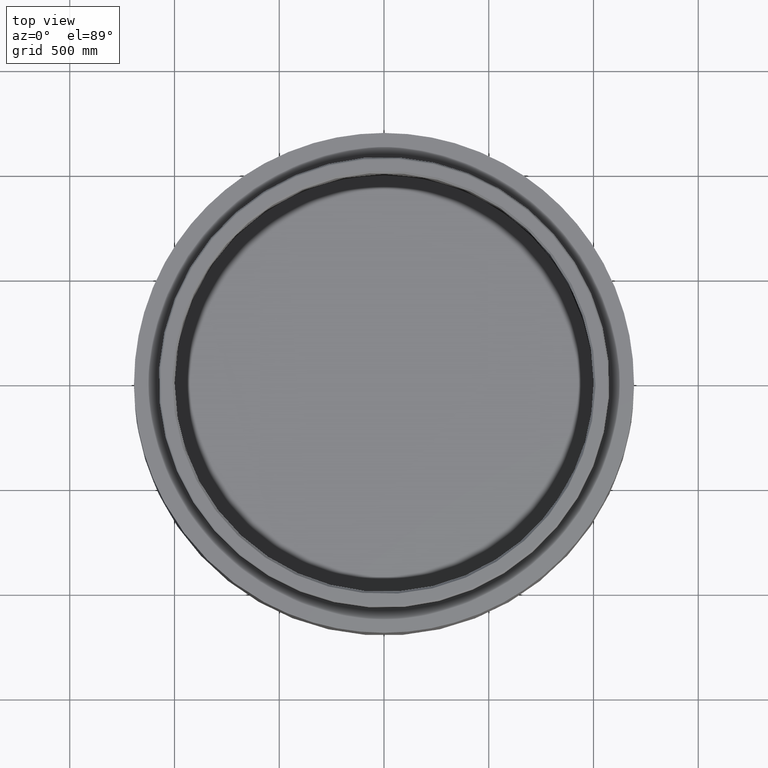
[diagram: clean part render]
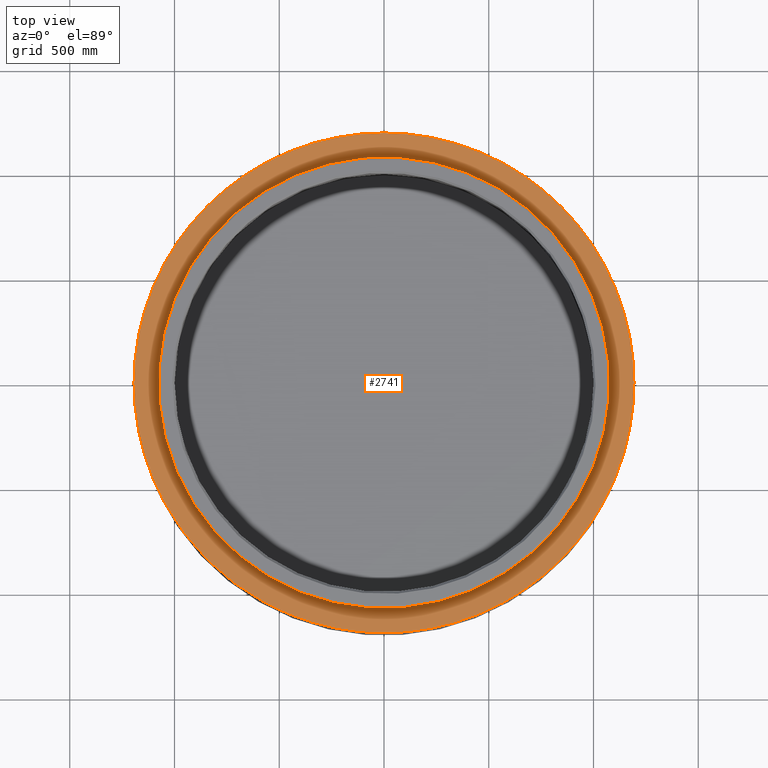
[diagram: same view with one face highlighted and labeled with its STEP entity id]
A machine part, top view. The second image highlights one B-rep face of the part: STEP entity #2741.
In plain terms, the highlighted planar face has unit normal (0, -0, 1).
Its self-contained STEP definition (entity closure, byte-faithful):
#33 = CARTESIAN_POINT ( 'NONE',  ( -341.4000642776308041, 1143.120031042307346, 557.0000000000000000 ) ) ;
#48 = CARTESIAN_POINT ( 'NONE',  ( 446.7788054181196458, 1106.182515374918466, 556.9999999999997726 ) ) ;
#149 = CARTESIAN_POINT ( 'NONE',  ( -417.4974777166241324, 1117.763629465329814, 556.9999999999998863 ) ) ;
#324 = CARTESIAN_POINT ( 'NONE',  ( 1110.468912292221603, -436.5241311987226709, 557.0000000000002274 ) ) ;
#459 = CARTESIAN_POINT ( 'NONE',  ( 476.1740398323344152, -1093.860552164960609, 557.0000000000000000 ) ) ;
#545 = ORIENTED_EDGE ( 'NONE', *, *, #8618, .T. ) ;
#576 = CIRCLE ( 'NONE', #13123, 1193.000000000000227 ) ;
#667 = CARTESIAN_POINT ( 'NONE',  ( 1085.582050390993118, -495.1878347200282633, 556.9999999999997726 ) ) ;
#819 = VERTEX_POINT ( 'NONE', #13542 ) ;
#959 = ORIENTED_EDGE ( 'NONE', *, *, #12391, .F. ) ;
#972 = ORIENTED_EDGE ( 'NONE', *, *, #20444, .F. ) ;
#999 = CARTESIAN_POINT ( 'NONE',  ( 1144.632210604118427, -336.2530333655441837, 557.0000000000000000 ) ) ;
#1161 = CARTESIAN_POINT ( 'NONE',  ( 572.9973566254999469, -910.7414722632267967, 557.0000000000000000 ) ) ;
#1260 = CARTESIAN_POINT ( 'NONE',  ( -1138.586671481308940, 356.8303361745944926, 557.0000000000000000 ) ) ;
#1290 = AXIS2_PLACEMENT_3D ( 'NONE', #4428, #17818, #19929 ) ;
#1305 = DIRECTION ( 'NONE',  ( -0.0000000000000000000, -0.0000000000000000000, -1.000000000000000000 ) ) ;
#1549 = DIRECTION ( 'NONE',  ( -0.0000000000000000000, -0.0000000000000000000, -1.000000000000000000 ) ) ;
#1576 = CARTESIAN_POINT ( 'NONE',  ( -1110.206155613008150, 437.1919630782510922, 557.0000000000001137 ) ) ;
#1628 = DIRECTION ( 'NONE',  ( 1.000000000000000000, 0.0000000000000000000, 0.0000000000000000000 ) ) ;
#1649 = CARTESIAN_POINT ( 'NONE',  ( 1144.632210606588615, 336.2530333571348820, 557.0000000000000000 ) ) ;
#1708 = VERTEX_POINT ( 'NONE', #9003 ) ;
#1713 = CARTESIAN_POINT ( 'NONE',  ( -1047.143998172631655, -571.6103979906561108, 557.0000000000000000 ) ) ;
#1739 = CARTESIAN_POINT ( 'NONE',  ( 571.6103979589651090, 1047.143998189931153, 557.0000000000000000 ) ) ;
#1895 = DIRECTION ( 'NONE',  ( -0.0000000000000000000, -0.0000000000000000000, -1.000000000000000000 ) ) ;
#1922 = EDGE_CURVE ( 'NONE', #18741, #17625, #3064, .T. ) ;
#1938 = CARTESIAN_POINT ( 'NONE',  ( 0.0000000000000000000, 0.0000000000000000000, 557.0000000000000000 ) ) ;
#1966 = B_SPLINE_CURVE_WITH_KNOTS ( 'NONE', 3,
 ( #1739, #8579, #10055, #22068, #6671, #13528, #15431, #48, #13755, #12063, #12523, #12634, #13984, #14322, #4100, #10956 ),
 .UNSPECIFIED., .F., .F.,
 ( 4, 2, 2, 2, 2, 2, 2, 4 ),
 ( 5.022828497566303341, 5.086460192354243404, 5.150091887142183467, 5.158045848990675530, 5.165999810839168482, 5.181907734536153498, 5.213723581930124418, 5.277355276718065369 ),
 .UNSPECIFIED. ) ;
#2100 = ORIENTED_EDGE ( 'NONE', *, *, #21162, .F. ) ;
#2145 = CARTESIAN_POINT ( 'NONE',  ( 356.5473028362452510, -1138.669825678807683, 557.0000000000001137 ) ) ;
#2221 = CIRCLE ( 'NONE', #10095, 1193.000000000000227 ) ;
#2235 = DIRECTION ( 'NONE',  ( -7.005467589146161716E-18, 3.518248062309025038E-17, -1.000000000000000000 ) ) ;
#2279 = VERTEX_POINT ( 'NONE', #8373 ) ;
#2403 = VERTEX_POINT ( 'NONE', #7947 ) ;
#2405 = CARTESIAN_POINT ( 'NONE',  ( 0.0000000000000000000, 0.0000000000000000000, 557.0000000000000000 ) ) ;
#2432 = ORIENTED_EDGE ( 'NONE', *, *, #10705, .F. ) ;
#2699 = CARTESIAN_POINT ( 'NONE',  ( -437.2605615748894934, -1110.179136669989020, 557.0000000000001137 ) ) ;
#2741 = ADVANCED_FACE ( 'NONE', ( #19844, #8239 ), #13096, .T. ) ;
#2787 = DIRECTION ( 'NONE',  ( -0.0000000000000000000, -0.0000000000000000000, -1.000000000000000000 ) ) ;
#3064 = B_SPLINE_CURVE_WITH_KNOTS ( 'NONE', 3,
 ( #1649, #13895, #8489, #13778, #8265, #8375, #8719, #15119, #20297 ),
 .UNSPECIFIED., .F., .F.,
 ( 4, 1, 2, 2, 4 ),
 ( 4.085705627250583838, 4.149595913780554923, 4.213486200310525120, 4.277376486840496206, 4.341266773370467291 ),
 .UNSPECIFIED. ) ;
#3416 = CIRCLE ( 'NONE', #17097, 1193.000000000000227 ) ;
#3548 = CARTESIAN_POINT ( 'NONE',  ( 336.2530334110388708, -1144.632210590753630, 557.0000000000000000 ) ) ;
#3585 = CARTESIAN_POINT ( 'NONE',  ( -336.2530333620578062, 1144.632210605142745, 557.0000000000000000 ) ) ;
#3603 = CARTESIAN_POINT ( 'NONE',  ( 505.3643934007752136, -1080.724204288987266, 556.9999999999997726 ) ) ;
#3728 = CARTESIAN_POINT ( 'NONE',  ( -572.9973566254998332, 910.7414722632269104, 557.0000000000000000 ) ) ;
#3740 = ORIENTED_EDGE ( 'NONE', *, *, #9481, .F. ) ;
#3799 = CIRCLE ( 'NONE', #21713, 1193.000000000000227 ) ;
#4029 = ORIENTED_EDGE ( 'NONE', *, *, #6837, .T. ) ;
#4034 = CARTESIAN_POINT ( 'NONE',  ( 1067.049910110763904, -533.6340863178093059, 557.0000000000002274 ) ) ;
#4100 = CARTESIAN_POINT ( 'NONE',  ( 356.5696518610520229, 1138.663259614766048, 557.0000000000001137 ) ) ;
#4144 = CARTESIAN_POINT ( 'NONE',  ( 1138.654558615437736, -356.5992675986272502, 556.9999999999997726 ) ) ;
#4160 = EDGE_CURVE ( 'NONE', #15467, #17625, #3416, .T. ) ;
#4218 = VERTEX_POINT ( 'NONE', #999 ) ;
#4255 = DIRECTION ( 'NONE',  ( -0.0000000000000000000, -0.0000000000000000000, -1.000000000000000000 ) ) ;
#4325 = VERTEX_POINT ( 'NONE', #7256 ) ;
#4362 = CIRCLE ( 'NONE', #7930, 1076.000000000000227 ) ;
#4428 = CARTESIAN_POINT ( 'NONE',  ( 0.0000000000000000000, 0.0000000000000000000, 557.0000000000000000 ) ) ;
#4451 = CARTESIAN_POINT ( 'NONE',  ( 635.8353567015304861, -1010.618325169417176, 557.0000000000000000 ) ) ;
#4514 = AXIS2_PLACEMENT_3D ( 'NONE', #13242, #7962, #5752 ) ;
#4653 = ORIENTED_EDGE ( 'NONE', *, *, #1922, .T. ) ;
#4735 = CARTESIAN_POINT ( 'NONE',  ( -336.2530333574074461, -1144.632210606508806, 557.0000000000000000 ) ) ;
#4824 = EDGE_CURVE ( 'NONE', #6488, #13517, #9975, .T. ) ;
#4846 = AXIS2_PLACEMENT_3D ( 'NONE', #14636, #16542, #16214 ) ;
#4868 = ORIENTED_EDGE ( 'NONE', *, *, #19775, .T. ) ;
#4946 = CARTESIAN_POINT ( 'NONE',  ( -1047.143998187830448, 571.6103979628128400, 557.0000000000000000 ) ) ;
#5052 = EDGE_CURVE ( 'NONE', #5250, #4218, #19645, .T. ) ;
#5196 = CARTESIAN_POINT ( 'NONE',  ( -387.3180471561136642, 1128.425580147770006, 556.9999999999997726 ) ) ;
#5250 = VERTEX_POINT ( 'NONE', #14141 ) ;
#5306 = VERTEX_POINT ( 'NONE', #9201 ) ;
#5365 = DIRECTION ( 'NONE',  ( -7.005467589146161716E-18, 3.518248062309025038E-17, -1.000000000000000000 ) ) ;
#5384 = CARTESIAN_POINT ( 'NONE',  ( 0.0000000000000000000, 0.0000000000000000000, 557.0000000000000000 ) ) ;
#5571 = ORIENTED_EDGE ( 'NONE', *, *, #5776, .T. ) ;
#5598 = CARTESIAN_POINT ( 'NONE',  ( 1057.269757360082167, -552.6816351404115721, 556.9999999999997726 ) ) ;
#5614 = EDGE_CURVE ( 'NONE', #4325, #10932, #15605, .T. ) ;
#5727 = CARTESIAN_POINT ( 'NONE',  ( 481.0682617862156576, -1091.716961811273904, 557.0000000000000000 ) ) ;
#5752 = DIRECTION ( 'NONE',  ( 1.000000000000000000, 7.105427357601001859E-15, 0.0000000000000000000 ) ) ;
#5776 = EDGE_CURVE ( 'NONE', #1708, #10746, #1966, .T. ) ;
#5863 = VERTEX_POINT ( 'NONE', #6862 ) ;
#5955 = CARTESIAN_POINT ( 'NONE',  ( -843.5783899558272196, 843.5783899552757248, 557.0000000000000000 ) ) ;
#6005 = ORIENTED_EDGE ( 'NONE', *, *, #4160, .F. ) ;
#6101 = DIRECTION ( 'NONE',  ( -0.0000000000000000000, -0.0000000000000000000, -1.000000000000000000 ) ) ;
#6162 = CARTESIAN_POINT ( 'NONE',  ( -356.8543190194177441, -1138.579625406078321, 556.9999999999997726 ) ) ;
#6171 = EDGE_CURVE ( 'NONE', #5306, #9884, #17043, .T. ) ;
#6488 = VERTEX_POINT ( 'NONE', #3548 ) ;
#6647 = CARTESIAN_POINT ( 'NONE',  ( -1093.903799374640130, -476.5175760357365675, 557.0000000000001137 ) ) ;
#6671 = CARTESIAN_POINT ( 'NONE',  ( 476.4355088094210942, 1093.942570011412272, 557.0000000000000000 ) ) ;
#6753 = DIRECTION ( 'NONE',  ( -0.0000000000000000000, -0.0000000000000000000, -1.000000000000000000 ) ) ;
#6815 = VERTEX_POINT ( 'NONE', #4946 ) ;
#6837 = EDGE_CURVE ( 'NONE', #6815, #819, #9732, .T. ) ;
#6843 = CARTESIAN_POINT ( 'NONE',  ( -1144.632210604298734, 336.2530333649301610, 557.0000000000000000 ) ) ;
#6862 = CARTESIAN_POINT ( 'NONE',  ( -571.6103979918433424, 1047.143998171983640, 557.0000000000000000 ) ) ;
#6875 = CARTESIAN_POINT ( 'NONE',  ( -346.5458940903257030, 1141.570409805527333, 556.9999999999998863 ) ) ;
#6949 = CARTESIAN_POINT ( 'NONE',  ( 571.6103979929713432, -1047.143998171367912, 557.0000000000000000 ) ) ;
#6990 = B_SPLINE_CURVE_WITH_KNOTS ( 'NONE', 3,
 ( #22044, #10028, #9921, #11710, #13614, #6647, #20248, #20700, #18463, #1713 ),
 .UNSPECIFIED., .F., .F.,
 ( 4, 2, 2, 2, 4 ),
 ( 0.3397156268068468599, 0.4035683020787442232, 0.4674209773506415866, 0.5312736526225390055, 0.5951263278944363133 ),
 .UNSPECIFIED. ) ;
#7183 = CARTESIAN_POINT ( 'NONE',  ( 534.1489978569503592, -1066.950621492062510, 556.9999999999998863 ) ) ;
#7254 = CIRCLE ( 'NONE', #16580, 1076.000000000000227 ) ;
#7256 = CARTESIAN_POINT ( 'NONE',  ( -1144.632210601342649, -336.2530333749930378, 557.0000000000000000 ) ) ;
#7316 = VERTEX_POINT ( 'NONE', #5955 ) ;
#7353 = ORIENTED_EDGE ( 'NONE', *, *, #11253, .F. ) ;
#7391 = CARTESIAN_POINT ( 'NONE',  ( 0.0000000000000000000, 0.0000000000000000000, 557.0000000000000000 ) ) ;
#7551 = CARTESIAN_POINT ( 'NONE',  ( -1047.143998172631655, -571.6103979906561108, 557.0000000000000000 ) ) ;
#7619 = CARTESIAN_POINT ( 'NONE',  ( 1052.258776024216786, -562.1641163296686727, 556.9999999999998863 ) ) ;
#7657 = ORIENTED_EDGE ( 'NONE', *, *, #5052, .T. ) ;
#7735 = CIRCLE ( 'NONE', #20281, 1193.000000000000227 ) ;
#7741 = CARTESIAN_POINT ( 'NONE',  ( -476.4813028111004201, -1093.919600936126699, 557.0000000000001137 ) ) ;
#7749 = AXIS2_PLACEMENT_3D ( 'NONE', #18174, #2787, #1628 ) ;
#7843 = CARTESIAN_POINT ( 'NONE',  ( -336.2530333574074461, -1144.632210606508806, 557.0000000000000000 ) ) ;
#7930 = AXIS2_PLACEMENT_3D ( 'NONE', #18965, #5365, #8616 ) ;
#7947 = CARTESIAN_POINT ( 'NONE',  ( 0.0000000000000000000, -1193.000000000000227, 557.0000000000000000 ) ) ;
#7949 = B_SPLINE_CURVE_WITH_KNOTS ( 'NONE', 3,
 ( #13379, #15167, #22029, #17980, #7741, #2699, #21560, #20088, #6162, #7843 ),
 .UNSPECIFIED., .F., .F.,
 ( 4, 2, 2, 2, 4 ),
 ( 1.276033611487462638, 1.339906850978275665, 1.403780090469088471, 1.467653329959901276, 1.531526569450714081 ),
 .UNSPECIFIED. ) ;
#7962 = DIRECTION ( 'NONE',  ( -0.0000000000000000000, -0.0000000000000000000, -1.000000000000000000 ) ) ;
#8239 = FACE_OUTER_BOUND ( 'NONE', #14024, .T. ) ;
#8265 = CARTESIAN_POINT ( 'NONE',  ( 1094.190398978441863, 475.8591055207503473, 557.0000000000000000 ) ) ;
#8308 = CARTESIAN_POINT ( 'NONE',  ( -1047.143998187830448, 571.6103979628128400, 557.0000000000000000 ) ) ;
#8373 = CARTESIAN_POINT ( 'NONE',  ( 1193.000000000000227, -3.625572064791527837E-13, 557.0000000000000000 ) ) ;
#8375 = CARTESIAN_POINT ( 'NONE',  ( 1085.538647458711694, 495.2821690659349088, 556.9999999999995453 ) ) ;
#8489 = CARTESIAN_POINT ( 'NONE',  ( 1125.598723621548970, 397.0149259832559210, 556.9999999999998863 ) ) ;
#8522 = DIRECTION ( 'NONE',  ( 1.000000000000000000, 0.0000000000000000000, 0.0000000000000000000 ) ) ;
#8560 = VERTEX_POINT ( 'NONE', #4735 ) ;
#8579 = CARTESIAN_POINT ( 'NONE',  ( 553.0489954436833386, 1057.275520425796913, 557.0000000000001137 ) ) ;
#8616 = DIRECTION ( 'NONE',  ( -0.5325254243731409876, 0.8464140076795787504, 0.0000000000000000000 ) ) ;
#8618 = EDGE_CURVE ( 'NONE', #5306, #8560, #7949, .T. ) ;
#8667 = CARTESIAN_POINT ( 'NONE',  ( 571.6103979929713432, -1047.143998171367912, 557.0000000000000000 ) ) ;
#8719 = CARTESIAN_POINT ( 'NONE',  ( 1067.156180437039211, 533.7397341831674566, 556.9999999999996589 ) ) ;
#8794 = CARTESIAN_POINT ( 'NONE',  ( -437.3604405177037506, 1110.139804305906409, 556.9999999999998863 ) ) ;
#8854 = CARTESIAN_POINT ( 'NONE',  ( 0.0000000000000000000, 0.0000000000000000000, 557.0000000000000000 ) ) ;
#8859 = CARTESIAN_POINT ( 'NONE',  ( 1049.717341606877426, -566.8959175603450831, 557.0000000000000000 ) ) ;
#8910 = CARTESIAN_POINT ( 'NONE',  ( -495.9383994086849157, 1085.236453791687836, 557.0000000000000000 ) ) ;
#8973 = EDGE_CURVE ( 'NONE', #1708, #15467, #20296, .T. ) ;
#9003 = CARTESIAN_POINT ( 'NONE',  ( 571.6103979589651090, 1047.143998189931153, 557.0000000000000000 ) ) ;
#9081 = CARTESIAN_POINT ( 'NONE',  ( 4.053384292576740637E-31, -2.250246836384645568E-30, 557.0000000000000000 ) ) ;
#9086 = CARTESIAN_POINT ( 'NONE',  ( 1144.632210604118427, -336.2530333655441837, 557.0000000000000000 ) ) ;
#9186 = CIRCLE ( 'NONE', #7749, 1193.000000000000227 ) ;
#9201 = CARTESIAN_POINT ( 'NONE',  ( -571.6103979979004635, -1047.143998168677172, 557.0000000000000000 ) ) ;
#9245 = ORIENTED_EDGE ( 'NONE', *, *, #9342, .F. ) ;
#9250 = DIRECTION ( 'NONE',  ( -0.0000000000000000000, -0.0000000000000000000, -1.000000000000000000 ) ) ;
#9342 = EDGE_CURVE ( 'NONE', #14736, #19283, #12028, .T. ) ;
#9481 = EDGE_CURVE ( 'NONE', #7316, #5863, #576, .T. ) ;
#9732 = B_SPLINE_CURVE_WITH_KNOTS ( 'NONE', 3,
 ( #8308, #11585, #18553, #11796, #15055, #1576, #16647, #22024, #1260, #6843 ),
 .UNSPECIFIED., .F., .F.,
 ( 4, 2, 2, 2, 4 ),
 ( 6.895377764263215248, 6.959283223599350698, 7.023188682935485261, 7.087094142271620711, 7.150999601607756162 ),
 .UNSPECIFIED. ) ;
#9884 = VERTEX_POINT ( 'NONE', #7551 ) ;
#9921 = CARTESIAN_POINT ( 'NONE',  ( -1131.990299210244984, -377.2252860026769667, 557.0000000000000000 ) ) ;
#9975 = B_SPLINE_CURVE_WITH_KNOTS ( 'NONE', 3,
 ( #17082, #2145, #14048, #21019, #17425, #17196, #15490, #459, #5727, #10448, #3603, #7183, #10684, #6949 ),
 .UNSPECIFIED., .F., .F.,
 ( 4, 2, 2, 2, 2, 2, 4 ),
 ( 2.213159000859044490, 2.276789090249947911, 2.340419179640851777, 2.356326701988577632, 2.372234224336303932, 2.404049269031756086, 2.467679358422661284 ),
 .UNSPECIFIED. ) ;
#10028 = CARTESIAN_POINT ( 'NONE',  ( -1138.575823560082199, -356.8672594251667078, 557.0000000000001137 ) ) ;
#10055 = CARTESIAN_POINT ( 'NONE',  ( 534.1934104708944915, 1066.927599731743157, 557.0000000000000000 ) ) ;
#10095 = AXIS2_PLACEMENT_3D ( 'NONE', #8854, #1549, #19079 ) ;
#10128 = DIRECTION ( 'NONE',  ( -0.0000000000000000000, -0.0000000000000000000, -1.000000000000000000 ) ) ;
#10372 = CARTESIAN_POINT ( 'NONE',  ( -336.2530333620578062, 1144.632210605142745, 557.0000000000000000 ) ) ;
#10448 = CARTESIAN_POINT ( 'NONE',  ( 495.6925977838828317, -1085.194582844894740, 557.0000000000000000 ) ) ;
#10684 = CARTESIAN_POINT ( 'NONE',  ( 553.0311942356933059, -1057.285237005616636, 557.0000000000000000 ) ) ;
#10705 = EDGE_CURVE ( 'NONE', #6488, #2403, #14200, .T. ) ;
#10746 = VERTEX_POINT ( 'NONE', #19627 ) ;
#10778 = DIRECTION ( 'NONE',  ( 1.000000000000000000, -7.105427357601001859E-15, 0.0000000000000000000 ) ) ;
#10888 = CARTESIAN_POINT ( 'NONE',  ( 1132.141759761228286, -376.7627306844501049, 556.9999999999997726 ) ) ;
#10932 = VERTEX_POINT ( 'NONE', #17099 ) ;
#10956 = CARTESIAN_POINT ( 'NONE',  ( 336.2530333712418269, 1144.632210602444729, 557.0000000000000000 ) ) ;
#10969 = AXIS2_PLACEMENT_3D ( 'NONE', #13100, #1305, #11095 ) ;
#11019 = CARTESIAN_POINT ( 'NONE',  ( 1144.632210606588615, 336.2530333571348820, 557.0000000000000000 ) ) ;
#11095 = DIRECTION ( 'NONE',  ( 1.000000000000000000, 4.440892098500626951E-15, 0.0000000000000000000 ) ) ;
#11100 = DIRECTION ( 'NONE',  ( -0.0000000000000000000, -0.0000000000000000000, -1.000000000000000000 ) ) ;
#11253 = EDGE_CURVE ( 'NONE', #15412, #13517, #3799, .T. ) ;
#11367 = AXIS2_PLACEMENT_3D ( 'NONE', #4451, #20161, #19954 ) ;
#11585 = CARTESIAN_POINT ( 'NONE',  ( -1057.327981099257158, 552.9528851404139687, 557.0000000000001137 ) ) ;
#11710 = CARTESIAN_POINT ( 'NONE',  ( -1117.784689927666705, -417.4404221528264998, 557.0000000000000000 ) ) ;
#11796 = CARTESIAN_POINT ( 'NONE',  ( -1085.306434008521364, 495.7865231565276645, 557.0000000000000000 ) ) ;
#12028 = CIRCLE ( 'NONE', #4514, 1193.000000000000227 ) ;
#12063 = CARTESIAN_POINT ( 'NONE',  ( 436.8345437668081104, 1110.156861483633975, 557.0000000000000000 ) ) ;
#12226 = CARTESIAN_POINT ( 'NONE',  ( 1118.048934773984911, -416.7251618609802790, 557.0000000000001137 ) ) ;
#12266 = ORIENTED_EDGE ( 'NONE', *, *, #15263, .F. ) ;
#12391 = EDGE_CURVE ( 'NONE', #18741, #2279, #19220, .T. ) ;
#12399 = CIRCLE ( 'NONE', #4846, 1193.000000000000227 ) ;
#12415 = VERTEX_POINT ( 'NONE', #3728 ) ;
#12457 = CARTESIAN_POINT ( 'NONE',  ( 1071.785105529206476, -524.0574147076185909, 557.0000000000001137 ) ) ;
#12523 = CARTESIAN_POINT ( 'NONE',  ( 431.8537510779063382, 1112.103853981288694, 557.0000000000000000 ) ) ;
#12610 = VERTEX_POINT ( 'NONE', #1161 ) ;
#12612 = DIRECTION ( 'NONE',  ( 1.000000000000000000, 0.0000000000000000000, 0.0000000000000000000 ) ) ;
#12634 = CARTESIAN_POINT ( 'NONE',  ( 416.8883557664704540, 1117.838416309240984, 557.0000000000001137 ) ) ;
#12762 = ORIENTED_EDGE ( 'NONE', *, *, #8973, .F. ) ;
#12833 = CARTESIAN_POINT ( 'NONE',  ( 2.220446049250313081E-13, 1193.000000000000227, 557.0000000000000000 ) ) ;
#13093 = CARTESIAN_POINT ( 'NONE',  ( 843.5783899555513017, -843.5783899555514154, 557.0000000000000000 ) ) ;
#13096 = PLANE ( 'NONE',  #11367 ) ;
#13100 = CARTESIAN_POINT ( 'NONE',  ( 0.0000000000000000000, 0.0000000000000000000, 557.0000000000000000 ) ) ;
#13123 = AXIS2_PLACEMENT_3D ( 'NONE', #2405, #9250, #12612 ) ;
#13242 = CARTESIAN_POINT ( 'NONE',  ( 0.0000000000000000000, 0.0000000000000000000, 557.0000000000000000 ) ) ;
#13316 = CIRCLE ( 'NONE', #16200, 1193.000000000000227 ) ;
#13379 = CARTESIAN_POINT ( 'NONE',  ( -571.6103979979004635, -1047.143998168677172, 557.0000000000000000 ) ) ;
#13517 = VERTEX_POINT ( 'NONE', #8667 ) ;
#13528 = CARTESIAN_POINT ( 'NONE',  ( 454.2108376205000582, 1103.151630371416104, 557.0000000000001137 ) ) ;
#13542 = CARTESIAN_POINT ( 'NONE',  ( -1144.632210604298734, 336.2530333649301610, 557.0000000000000000 ) ) ;
#13614 = CARTESIAN_POINT ( 'NONE',  ( -1110.164578087752716, -437.2975186974600774, 557.0000000000000000 ) ) ;
#13691 = EDGE_CURVE ( 'NONE', #4325, #9884, #6990, .T. ) ;
#13755 = CARTESIAN_POINT ( 'NONE',  ( 444.2941493632015977, 1107.182819265832677, 557.0000000000001137 ) ) ;
#13778 = CARTESIAN_POINT ( 'NONE',  ( 1110.427682669236219, 436.6290061192150915, 557.0000000000000000 ) ) ;
#13854 = CARTESIAN_POINT ( 'NONE',  ( -553.0066129395485177, 1057.298654415632200, 556.9999999999997726 ) ) ;
#13895 = CARTESIAN_POINT ( 'NONE',  ( 1138.643973801066068, 356.6352953092121538, 556.9999999999998863 ) ) ;
#13984 = CARTESIAN_POINT ( 'NONE',  ( 406.8807404483193864, 1121.519592006353832, 557.0000000000002274 ) ) ;
#14024 = EDGE_LOOP ( 'NONE', ( #2432, #21418, #7353, #2100, #7657, #972, #959, #4653, #6005, #12762, #5571, #14831, #9245, #4868, #3740, #17558, #4029, #16093, #16787, #21576, #21722, #545, #12266 ) ) ;
#14048 = CARTESIAN_POINT ( 'NONE',  ( 376.7134198212938259, -1132.159264470716380, 557.0000000000000000 ) ) ;
#14058 = DIRECTION ( 'NONE',  ( 1.000000000000000000, -4.440892098500626951E-15, 0.0000000000000000000 ) ) ;
#14141 = CARTESIAN_POINT ( 'NONE',  ( 1047.143998276338607, -571.6103978006732405, 557.0000000000000000 ) ) ;
#14169 = CARTESIAN_POINT ( 'NONE',  ( 0.0000000000000000000, 0.0000000000000000000, 557.0000000000000000 ) ) ;
#14200 = CIRCLE ( 'NONE', #21733, 1193.000000000000227 ) ;
#14220 = ORIENTED_EDGE ( 'NONE', *, *, #21439, .T. ) ;
#14322 = CARTESIAN_POINT ( 'NONE',  ( 376.7668680375753638, 1132.142278311541077, 557.0000000000000000 ) ) ;
#14636 = CARTESIAN_POINT ( 'NONE',  ( 0.0000000000000000000, 0.0000000000000000000, 557.0000000000000000 ) ) ;
#14671 = EDGE_CURVE ( 'NONE', #6815, #7316, #12399, .T. ) ;
#14736 = VERTEX_POINT ( 'NONE', #3585 ) ;
#14799 = CIRCLE ( 'NONE', #16941, 1193.000000000000227 ) ;
#14831 = ORIENTED_EDGE ( 'NONE', *, *, #14834, .F. ) ;
#14834 = EDGE_CURVE ( 'NONE', #19283, #10746, #7735, .T. ) ;
#14935 = ORIENTED_EDGE ( 'NONE', *, *, #17454, .T. ) ;
#15055 = CARTESIAN_POINT ( 'NONE',  ( -1093.948944365960187, 476.4139339126356845, 557.0000000000000000 ) ) ;
#15119 = CARTESIAN_POINT ( 'NONE',  ( 1057.425489857013645, 552.7742447302229039, 557.0000000000000000 ) ) ;
#15167 = CARTESIAN_POINT ( 'NONE',  ( -552.9743869185244876, -1057.316244608557554, 557.0000000000001137 ) ) ;
#15263 = EDGE_CURVE ( 'NONE', #2403, #8560, #9186, .T. ) ;
#15412 = VERTEX_POINT ( 'NONE', #13093 ) ;
#15431 = CARTESIAN_POINT ( 'NONE',  ( 451.7366742547573608, 1104.167109111149784, 557.0000000000000000 ) ) ;
#15467 = VERTEX_POINT ( 'NONE', #16682 ) ;
#15490 = CARTESIAN_POINT ( 'NONE',  ( 466.3464655867600186, -1098.086278103933864, 557.0000000000001137 ) ) ;
#15605 = CIRCLE ( 'NONE', #10969, 1193.000000000000227 ) ;
#15643 = CARTESIAN_POINT ( 'NONE',  ( -571.6103979918433424, 1047.143998171983640, 557.0000000000000000 ) ) ;
#15706 = CARTESIAN_POINT ( 'NONE',  ( 1094.235462104263888, -475.7554648971782285, 557.0000000000001137 ) ) ;
#15926 = CARTESIAN_POINT ( 'NONE',  ( 1047.143998170958184, 571.6103979937217900, 557.0000000000000000 ) ) ;
#16093 = ORIENTED_EDGE ( 'NONE', *, *, #16196, .F. ) ;
#16159 = DIRECTION ( 'NONE',  ( -0.5325254243731409876, 0.8464140076795787504, 0.0000000000000000000 ) ) ;
#16164 = CARTESIAN_POINT ( 'NONE',  ( 1047.143998276338607, -571.6103978006732405, 557.0000000000000000 ) ) ;
#16196 = EDGE_CURVE ( 'NONE', #10932, #819, #14799, .T. ) ;
#16200 = AXIS2_PLACEMENT_3D ( 'NONE', #1938, #6753, #19012 ) ;
#16214 = DIRECTION ( 'NONE',  ( 1.000000000000000000, 0.0000000000000000000, 0.0000000000000000000 ) ) ;
#16542 = DIRECTION ( 'NONE',  ( -0.0000000000000000000, -0.0000000000000000000, -1.000000000000000000 ) ) ;
#16580 = AXIS2_PLACEMENT_3D ( 'NONE', #9081, #2235, #16159 ) ;
#16647 = CARTESIAN_POINT ( 'NONE',  ( -1117.820866472700345, 417.3425861127985286, 557.0000000000000000 ) ) ;
#16682 = CARTESIAN_POINT ( 'NONE',  ( 843.5783899555513017, 843.5783899555513017, 557.0000000000000000 ) ) ;
#16742 = B_SPLINE_CURVE_WITH_KNOTS ( 'NONE', 3,
 ( #10372, #33, #6875, #18691, #18911, #20594, #5196, #149, #8794, #20826, #8910, #17231, #13854, #15643 ),
 .UNSPECIFIED., .F., .F.,
 ( 4, 2, 2, 2, 2, 2, 4 ),
 ( 5.959212789982365699, 5.975165747513845105, 5.991118705045324511, 6.023024620108284211, 6.086836450234203610, 6.150648280360123010, 6.214460110486041522 ),
 .UNSPECIFIED. ) ;
#16787 = ORIENTED_EDGE ( 'NONE', *, *, #5614, .F. ) ;
#16941 = AXIS2_PLACEMENT_3D ( 'NONE', #21500, #6101, #17920 ) ;
#17043 = CIRCLE ( 'NONE', #21763, 1193.000000000000227 ) ;
#17082 = CARTESIAN_POINT ( 'NONE',  ( 336.2530334110388708, -1144.632210590753630, 557.0000000000000000 ) ) ;
#17097 = AXIS2_PLACEMENT_3D ( 'NONE', #17971, #4255, #19652 ) ;
#17099 = CARTESIAN_POINT ( 'NONE',  ( -1193.000000000000227, 2.591020844036879487E-13, 557.0000000000000000 ) ) ;
#17196 = CARTESIAN_POINT ( 'NONE',  ( 461.4095963559478832, -1100.169838140002412, 557.0000000000001137 ) ) ;
#17231 = CARTESIAN_POINT ( 'NONE',  ( -534.1512543202267125, 1066.947671003547157, 556.9999999999997726 ) ) ;
#17425 = CARTESIAN_POINT ( 'NONE',  ( 436.6924273536300234, -1110.406072199476966, 557.0000000000000000 ) ) ;
#17454 = EDGE_CURVE ( 'NONE', #12415, #12610, #7254, .T. ) ;
#17558 = ORIENTED_EDGE ( 'NONE', *, *, #14671, .F. ) ;
#17625 = VERTEX_POINT ( 'NONE', #15926 ) ;
#17790 = AXIS2_PLACEMENT_3D ( 'NONE', #14169, #19113, #14058 ) ;
#17818 = DIRECTION ( 'NONE',  ( -0.0000000000000000000, -0.0000000000000000000, -1.000000000000000000 ) ) ;
#17920 = DIRECTION ( 'NONE',  ( 1.000000000000000000, 0.0000000000000000000, 0.0000000000000000000 ) ) ;
#17971 = CARTESIAN_POINT ( 'NONE',  ( 0.0000000000000000000, 0.0000000000000000000, 557.0000000000000000 ) ) ;
#17980 = CARTESIAN_POINT ( 'NONE',  ( -495.8476364158501042, -1085.278276142852292, 557.0000000000000000 ) ) ;
#18174 = CARTESIAN_POINT ( 'NONE',  ( 0.0000000000000000000, 0.0000000000000000000, 557.0000000000000000 ) ) ;
#18463 = CARTESIAN_POINT ( 'NONE',  ( -1057.309934523544598, -552.9859472765820101, 557.0000000000000000 ) ) ;
#18553 = CARTESIAN_POINT ( 'NONE',  ( -1066.995951534968299, 534.0559983806543869, 557.0000000000000000 ) ) ;
#18691 = CARTESIAN_POINT ( 'NONE',  ( -356.7999534726902766, 1138.406849203348429, 556.9999999999996589 ) ) ;
#18741 = VERTEX_POINT ( 'NONE', #11019 ) ;
#18759 = DIRECTION ( 'NONE',  ( -0.0000000000000000000, -0.0000000000000000000, -1.000000000000000000 ) ) ;
#18911 = CARTESIAN_POINT ( 'NONE',  ( -361.9106477150813816, 1136.792236157545631, 557.0000000000001137 ) ) ;
#18965 = CARTESIAN_POINT ( 'NONE',  ( 4.053384292576740637E-31, -2.250246836384645568E-30, 557.0000000000000000 ) ) ;
#19007 = EDGE_LOOP ( 'NONE', ( #14935, #14220 ) ) ;
#19012 = DIRECTION ( 'NONE',  ( 1.000000000000000000, 0.0000000000000000000, 0.0000000000000000000 ) ) ;
#19079 = DIRECTION ( 'NONE',  ( 1.000000000000000000, 0.0000000000000000000, 0.0000000000000000000 ) ) ;
#19113 = DIRECTION ( 'NONE',  ( -0.0000000000000000000, -0.0000000000000000000, -1.000000000000000000 ) ) ;
#19220 = CIRCLE ( 'NONE', #17790, 1193.000000000000227 ) ;
#19283 = VERTEX_POINT ( 'NONE', #12833 ) ;
#19413 = CARTESIAN_POINT ( 'NONE',  ( 0.0000000000000000000, 0.0000000000000000000, 557.0000000000000000 ) ) ;
#19422 = CARTESIAN_POINT ( 'NONE',  ( 1059.740612419152512, -547.9285652884790352, 557.0000000000001137 ) ) ;
#19524 = DIRECTION ( 'NONE',  ( 1.000000000000000000, 0.0000000000000000000, 0.0000000000000000000 ) ) ;
#19627 = CARTESIAN_POINT ( 'NONE',  ( 336.2530333712418269, 1144.632210602444729, 557.0000000000000000 ) ) ;
#19645 = B_SPLINE_CURVE_WITH_KNOTS ( 'NONE', 3,
 ( #16164, #8859, #7619, #5598, #19422, #4034, #12457, #667, #15706, #324, #12226, #10888, #4144, #9086 ),
 .UNSPECIFIED., .F., .F.,
 ( 4, 2, 2, 2, 2, 2, 4 ),
 ( 3.149466054700340578, 3.165424098592966917, 3.181382142485593256, 3.213298230270846378, 3.277130405841352179, 3.340962581411857979, 3.404794756982363779 ),
 .UNSPECIFIED. ) ;
#19652 = DIRECTION ( 'NONE',  ( 1.000000000000000000, -7.993605777301127091E-15, 0.0000000000000000000 ) ) ;
#19775 = EDGE_CURVE ( 'NONE', #14736, #5863, #16742, .T. ) ;
#19844 = FACE_BOUND ( 'NONE', #19007, .T. ) ;
#19929 = DIRECTION ( 'NONE',  ( 1.000000000000000000, 8.881784197001253901E-15, 0.0000000000000000000 ) ) ;
#19954 = DIRECTION ( 'NONE',  ( 0.5325254243731409876, -0.8464140076795787504, -3.350953402514127196E-17 ) ) ;
#20088 = CARTESIAN_POINT ( 'NONE',  ( -377.2030325870285310, -1131.997591813724739, 557.0000000000000000 ) ) ;
#20161 = DIRECTION ( 'NONE',  ( 7.005467589146155553E-18, -3.518248062309023806E-17, 1.000000000000000000 ) ) ;
#20248 = CARTESIAN_POINT ( 'NONE',  ( -1085.263118603531666, -495.8805301002427655, 557.0000000000000000 ) ) ;
#20281 = AXIS2_PLACEMENT_3D ( 'NONE', #7391, #1895, #10778 ) ;
#20296 = CIRCLE ( 'NONE', #1290, 1193.000000000000227 ) ;
#20297 = CARTESIAN_POINT ( 'NONE',  ( 1047.143998170958184, 571.6103979937217900, 557.0000000000000000 ) ) ;
#20444 = EDGE_CURVE ( 'NONE', #2279, #4218, #13316, .T. ) ;
#20573 = DIRECTION ( 'NONE',  ( 1.000000000000000000, 0.0000000000000000000, 0.0000000000000000000 ) ) ;
#20594 = CARTESIAN_POINT ( 'NONE',  ( -377.1940366432098131, 1131.850526977283380, 556.9999999999998863 ) ) ;
#20700 = CARTESIAN_POINT ( 'NONE',  ( -1066.966187287960793, -534.1147162580979284, 557.0000000000000000 ) ) ;
#20826 = CARTESIAN_POINT ( 'NONE',  ( -476.5809054567661178, 1093.876224695703286, 557.0000000000000000 ) ) ;
#21019 = CARTESIAN_POINT ( 'NONE',  ( 416.7859785174571243, -1118.027372492216728, 557.0000000000000000 ) ) ;
#21162 = EDGE_CURVE ( 'NONE', #5250, #15412, #2221, .T. ) ;
#21418 = ORIENTED_EDGE ( 'NONE', *, *, #4824, .T. ) ;
#21439 = EDGE_CURVE ( 'NONE', #12610, #12415, #4362, .T. ) ;
#21500 = CARTESIAN_POINT ( 'NONE',  ( 0.0000000000000000000, 0.0000000000000000000, 557.0000000000000000 ) ) ;
#21560 = CARTESIAN_POINT ( 'NONE',  ( -417.4061599180960798, -1117.797360134836026, 557.0000000000000000 ) ) ;
#21576 = ORIENTED_EDGE ( 'NONE', *, *, #13691, .T. ) ;
#21713 = AXIS2_PLACEMENT_3D ( 'NONE', #22145, #10128, #20573 ) ;
#21722 = ORIENTED_EDGE ( 'NONE', *, *, #6171, .F. ) ;
#21733 = AXIS2_PLACEMENT_3D ( 'NONE', #5384, #18759, #8522 ) ;
#21763 = AXIS2_PLACEMENT_3D ( 'NONE', #19413, #11100, #19524 ) ;
#22024 = CARTESIAN_POINT ( 'NONE',  ( -1132.011113122314327, 377.1617674261673301, 557.0000000000000000 ) ) ;
#22029 = CARTESIAN_POINT ( 'NONE',  ( -534.0941786762997481, -1066.976598412436942, 556.9999999999998863 ) ) ;
#22044 = CARTESIAN_POINT ( 'NONE',  ( -1144.632210601342649, -336.2530333749930378, 557.0000000000000000 ) ) ;
#22068 = CARTESIAN_POINT ( 'NONE',  ( 495.8866594054718462, 1085.261111896797047, 557.0000000000000000 ) ) ;
#22145 = CARTESIAN_POINT ( 'NONE',  ( 0.0000000000000000000, 0.0000000000000000000, 557.0000000000000000 ) ) ;